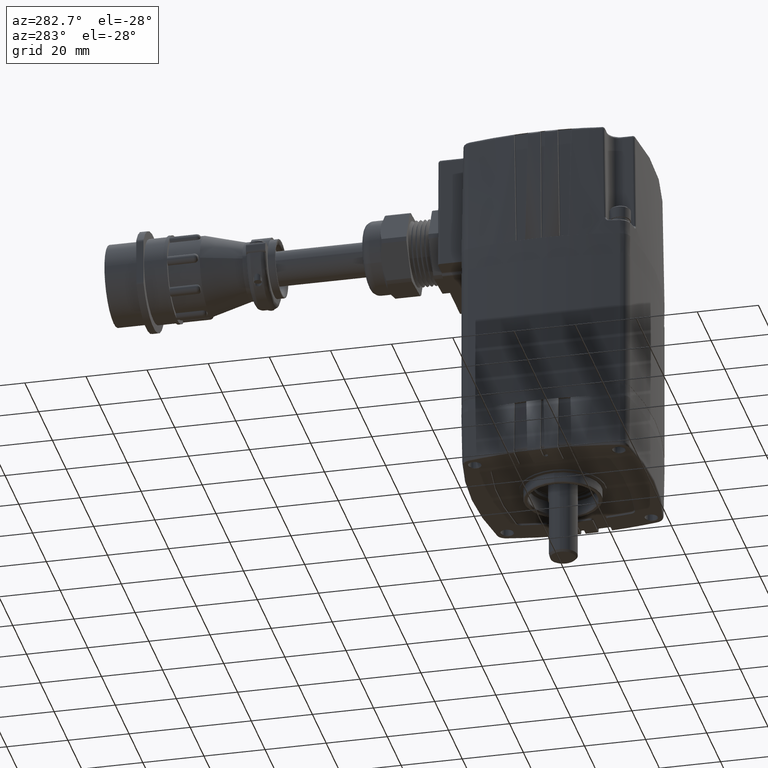
[diagram: clean part render]
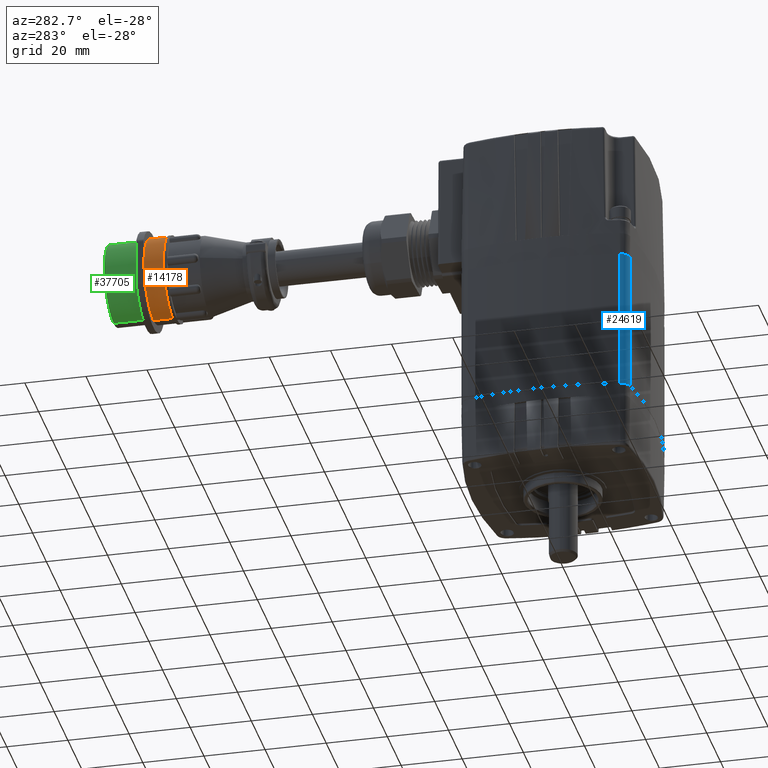
[diagram: same view with three faces highlighted in distinct colors, each labeled with its STEP entity id]
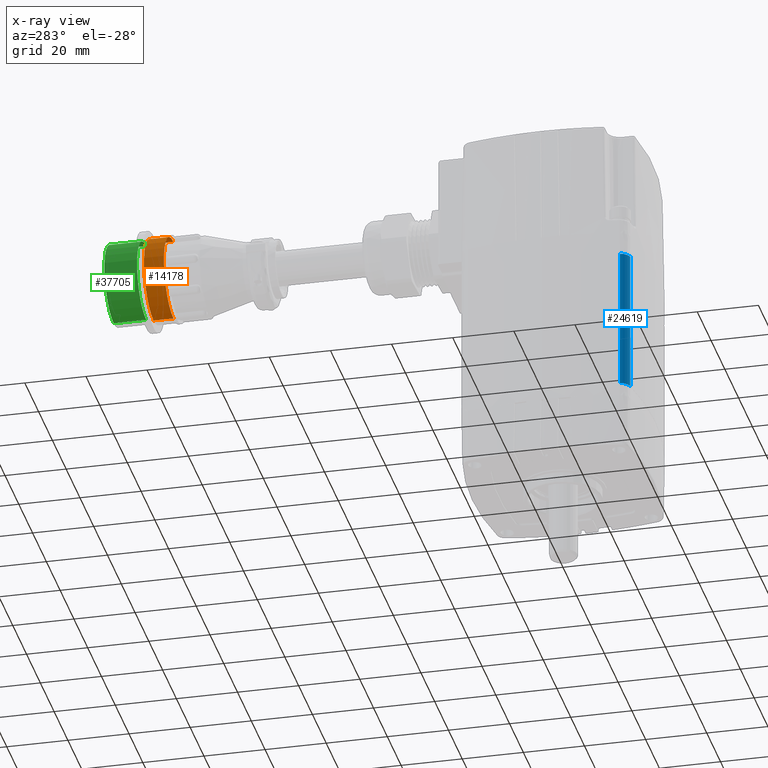
[diagram: x-ray of the same camera — body ghosted, the three highlighted faces saturated]
A machine part, auxiliary view with three faces highlighted in distinct colors.
The next image is the same camera in x-ray (body ghosted, the three faces saturated) — at least one of them is partly hidden behind the body in this view.
Their STEP definitions:

[orange] entity #14178 — the highlighted cylindrical surface (partial cylindrical patch) has radius 13.843 mm, axis along (0, -1, -0).
#408 = CARTESIAN_POINT ( 'NONE',  ( -2.011075613575176400, 4.379474271304236900, -0.09500000000000130600 ) ) ;
#1310 = FACE_OUTER_BOUND ( 'NONE', #19924, .T. ) ;
#1869 = EDGE_CURVE ( 'NONE', #8273, #10011, #8151, .T. ) ;
#3509 = VECTOR ( 'NONE', #22214, 39.37007874015748100 ) ;
#5189 = AXIS2_PLACEMENT_3D ( 'NONE', #14017, #35305, #17071 ) ;
#8151 = CIRCLE ( 'NONE', #9847, 0.5450000000000019300 ) ;
#8273 = VERTEX_POINT ( 'NONE', #16300 ) ;
#9847 = AXIS2_PLACEMENT_3D ( 'NONE', #34295, #16069, #37378 ) ;
#9873 = CARTESIAN_POINT ( 'NONE',  ( -2.011075613575176400, 4.635474271304236300, -0.09500000000000090300 ) ) ;
#10011 = VERTEX_POINT ( 'NONE', #9873 ) ;
#10391 = DIRECTION ( 'NONE',  ( -2.498001805406579500E-016, 1.000000000000000000, 5.551115123125158400E-017 ) ) ;
#10738 = ORIENTED_EDGE ( 'NONE', *, *, #32651, .F. ) ;
#11693 = LINE ( 'NONE', #19186, #3509 ) ;
#13730 = EDGE_CURVE ( 'NONE', #26623, #29540, #27141, .T. ) ;
#14017 = CARTESIAN_POINT ( 'NONE',  ( -2.011075613575176400, 4.379474271304236900, 0.4500000000000012300 ) ) ;
#14178 = ADVANCED_FACE ( 'NONE', ( #1310 ), #23753, .T. ) ;
#16069 = DIRECTION ( 'NONE',  ( 2.498001805406579500E-016, -1.000000000000000000, -5.551115123125158400E-017 ) ) ;
#16300 = CARTESIAN_POINT ( 'NONE',  ( -2.011075613575176400, 4.635474271304242500, 0.9950000000000138700 ) ) ;
#17071 = DIRECTION ( 'NONE',  ( 1.000000000000000000, 0.0000000000000000000, 0.0000000000000000000 ) ) ;
#19186 = CARTESIAN_POINT ( 'NONE',  ( -2.011075613575172400, 5.201974271304216300, 0.9950000000000105400 ) ) ;
#19790 = DIRECTION ( 'NONE',  ( 1.000000000000000000, 0.0000000000000000000, 0.0000000000000000000 ) ) ;
#19924 = EDGE_LOOP ( 'NONE', ( #36591, #31902, #10738, #23108 ) ) ;
#22214 = DIRECTION ( 'NONE',  ( 2.498001805406579500E-016, -1.000000000000000000, -5.551115123125158400E-017 ) ) ;
#22841 = DIRECTION ( 'NONE',  ( 2.498001805406579500E-016, -1.000000000000000000, -5.551115123125158400E-017 ) ) ;
#23108 = ORIENTED_EDGE ( 'NONE', *, *, #13730, .T. ) ;
#23753 = CYLINDRICAL_SURFACE ( 'NONE', #37188, 0.5450000000000019300 ) ;
#24408 = LINE ( 'NONE', #28800, #33486 ) ;
#25198 = EDGE_CURVE ( 'NONE', #8273, #29540, #11693, .T. ) ;
#25919 = CARTESIAN_POINT ( 'NONE',  ( -2.011075613575172400, 5.201974271304217200, 0.4500000000000006800 ) ) ;
#26623 = VERTEX_POINT ( 'NONE', #408 ) ;
#27141 = CIRCLE ( 'NONE', #5189, 0.5450000000000019300 ) ;
#28800 = CARTESIAN_POINT ( 'NONE',  ( -2.011075613575174200, 5.201974271304217200, -0.09500000000000090300 ) ) ;
#29540 = VERTEX_POINT ( 'NONE', #31477 ) ;
#31477 = CARTESIAN_POINT ( 'NONE',  ( -2.011075613575176400, 4.379474271304242300, 0.9950000000000138700 ) ) ;
#31902 = ORIENTED_EDGE ( 'NONE', *, *, #1869, .T. ) ;
#32651 = EDGE_CURVE ( 'NONE', #26623, #10011, #24408, .T. ) ;
#33486 = VECTOR ( 'NONE', #10391, 39.37007874015748100 ) ;
#34295 = CARTESIAN_POINT ( 'NONE',  ( -2.011075613575176400, 4.635474271304237200, 0.4500000000000002300 ) ) ;
#35305 = DIRECTION ( 'NONE',  ( -2.498001805406579500E-016, 1.000000000000000000, 5.551115123125158400E-017 ) ) ;
#36591 = ORIENTED_EDGE ( 'NONE', *, *, #25198, .F. ) ;
#37188 = AXIS2_PLACEMENT_3D ( 'NONE', #25919, #22841, #19790 ) ;
#37378 = DIRECTION ( 'NONE',  ( 1.000000000000000000, 0.0000000000000000000, 0.0000000000000000000 ) ) ;

[blue] entity #24619 — the highlighted cylindrical surface (edge-blend (fillet) strip) has radius 3.556 mm, axis along (0, 0, 1).
#700 = CYLINDRICAL_SURFACE ( 'NONE', #23466, 0.1400000000000001500 ) ;
#1459 = AXIS2_PLACEMENT_3D ( 'NONE', #36140, #17894, #39202 ) ;
#3166 = CIRCLE ( 'NONE', #1459, 0.1400000000000001500 ) ;
#3736 = ORIENTED_EDGE ( 'NONE', *, *, #16067, .T. ) ;
#4449 = EDGE_CURVE ( 'NONE', #14499, #10147, #3166, .T. ) ;
#5639 = ORIENTED_EDGE ( 'NONE', *, *, #26853, .F. ) ;
#8836 = AXIS2_PLACEMENT_3D ( 'NONE', #13014, #34322, #16097 ) ;
#10147 = VERTEX_POINT ( 'NONE', #29486 ) ;
#10407 = CARTESIAN_POINT ( 'NONE',  ( -0.9783630889088966700, -1.087217603070765900, -5.197342997073729300 ) ) ;
#10819 = VERTEX_POINT ( 'NONE', #13004 ) ;
#12848 = EDGE_LOOP ( 'NONE', ( #24615, #3736, #36587, #5639 ) ) ;
#13004 = CARTESIAN_POINT ( 'NONE',  ( -0.9783630889088966700, -1.087217603070766300, -1.840000000000000100 ) ) ;
#13014 = CARTESIAN_POINT ( 'NONE',  ( -0.9501001187157093200, -0.9501001187157102100, -1.840000000000000100 ) ) ;
#14499 = VERTEX_POINT ( 'NONE', #21604 ) ;
#15428 = VECTOR ( 'NONE', #36035, 39.37007874015748100 ) ;
#16067 = EDGE_CURVE ( 'NONE', #10819, #10147, #33660, .T. ) ;
#16097 = DIRECTION ( 'NONE',  ( 1.000000000000000000, 9.756599977372358800E-016, 0.0000000000000000000 ) ) ;
#17894 = DIRECTION ( 'NONE',  ( 0.0000000000000000000, 0.0000000000000000000, 1.000000000000000000 ) ) ;
#19622 = DIRECTION ( 'NONE',  ( 0.0000000000000000000, 0.0000000000000000000, 1.000000000000000000 ) ) ;
#20146 = CIRCLE ( 'NONE', #8836, 0.1400000000000001500 ) ;
#21604 = CARTESIAN_POINT ( 'NONE',  ( -1.087217603070765200, -0.9783630889088978900, 0.0000000000000000000 ) ) ;
#23466 = AXIS2_PLACEMENT_3D ( 'NONE', #38371, #30197, #39239 ) ;
#23523 = LINE ( 'NONE', #29796, #15428 ) ;
#24615 = ORIENTED_EDGE ( 'NONE', *, *, #33071, .F. ) ;
#24619 = ADVANCED_FACE ( 'NONE', ( #25087 ), #700, .T. ) ;
#25087 = FACE_OUTER_BOUND ( 'NONE', #12848, .T. ) ;
#25572 = VECTOR ( 'NONE', #19622, 39.37007874015748100 ) ;
#26853 = EDGE_CURVE ( 'NONE', #36095, #14499, #23523, .T. ) ;
#29486 = CARTESIAN_POINT ( 'NONE',  ( -0.9783630889088966700, -1.087217603070765900, 0.0000000000000000000 ) ) ;
#29796 = CARTESIAN_POINT ( 'NONE',  ( -1.087217603070765200, -0.9783630889088978900, -5.197342997073729300 ) ) ;
#30197 = DIRECTION ( 'NONE',  ( 0.0000000000000000000, 0.0000000000000000000, 1.000000000000000000 ) ) ;
#33071 = EDGE_CURVE ( 'NONE', #10819, #36095, #20146, .T. ) ;
#33660 = LINE ( 'NONE', #10407, #25572 ) ;
#34322 = DIRECTION ( 'NONE',  ( -0.0000000000000000000, -0.0000000000000000000, -1.000000000000000000 ) ) ;
#34480 = CARTESIAN_POINT ( 'NONE',  ( -1.087217603070765200, -0.9783630889088978900, -1.840000000000000100 ) ) ;
#36035 = DIRECTION ( 'NONE',  ( 0.0000000000000000000, 0.0000000000000000000, 1.000000000000000000 ) ) ;
#36095 = VERTEX_POINT ( 'NONE', #34480 ) ;
#36140 = CARTESIAN_POINT ( 'NONE',  ( -0.9501001187157093200, -0.9501001187157102100, 0.0000000000000000000 ) ) ;
#36587 = ORIENTED_EDGE ( 'NONE', *, *, #4449, .F. ) ;
#38371 = CARTESIAN_POINT ( 'NONE',  ( -0.9501001187157093200, -0.9501001187157102100, -5.197342997073729300 ) ) ;
#39202 = DIRECTION ( 'NONE',  ( 1.000000000000000000, 0.0000000000000000000, 0.0000000000000000000 ) ) ;
#39239 = DIRECTION ( 'NONE',  ( 1.000000000000000000, 0.0000000000000000000, 0.0000000000000000000 ) ) ;

[green] entity #37705 — the highlighted cylindrical surface (partial cylindrical patch) has radius 13.335 mm, axis along (0, -1, -0).
#169 = VERTEX_POINT ( 'NONE', #33922 ) ;
#782 = VECTOR ( 'NONE', #27884, 39.37007874015748100 ) ;
#1718 = CYLINDRICAL_SURFACE ( 'NONE', #21762, 0.5250000000000019100 ) ;
#2861 = VECTOR ( 'NONE', #23430, 39.37007874015748100 ) ;
#3503 = DIRECTION ( 'NONE',  ( 1.000000000000000000, 0.0000000000000000000, 0.0000000000000000000 ) ) ;
#3591 = FACE_OUTER_BOUND ( 'NONE', #32926, .T. ) ;
#4911 = CIRCLE ( 'NONE', #27604, 0.5250000000000019100 ) ;
#5252 = AXIS2_PLACEMENT_3D ( 'NONE', #12399, #33713, #15477 ) ;
#6496 = CARTESIAN_POINT ( 'NONE',  ( -2.011075613575174200, 5.201974271304217200, -0.07500000000000056600 ) ) ;
#6541 = ORIENTED_EDGE ( 'NONE', *, *, #15842, .T. ) ;
#10877 = CARTESIAN_POINT ( 'NONE',  ( -2.011075613575176400, 4.729474271304242800, 0.9750000000000096400 ) ) ;
#12399 = CARTESIAN_POINT ( 'NONE',  ( -2.011075613575176400, 4.729474271304236600, 0.4500000000000002300 ) ) ;
#12794 = DIRECTION ( 'NONE',  ( 2.498001805406579500E-016, -1.000000000000000000, -5.551115123125158400E-017 ) ) ;
#13018 = CARTESIAN_POINT ( 'NONE',  ( -2.011075613575172400, 5.149474271304217900, 0.4500000000000007900 ) ) ;
#13192 = CIRCLE ( 'NONE', #5252, 0.5250000000000019100 ) ;
#15128 = VERTEX_POINT ( 'NONE', #10877 ) ;
#15477 = DIRECTION ( 'NONE',  ( 1.000000000000000000, 0.0000000000000000000, 0.0000000000000000000 ) ) ;
#15842 = EDGE_CURVE ( 'NONE', #36961, #15128, #13192, .T. ) ;
#16102 = DIRECTION ( 'NONE',  ( 1.000000000000000000, 0.0000000000000000000, 0.0000000000000000000 ) ) ;
#18592 = ORIENTED_EDGE ( 'NONE', *, *, #18639, .T. ) ;
#18639 = EDGE_CURVE ( 'NONE', #169, #33076, #4911, .T. ) ;
#19200 = LINE ( 'NONE', #20370, #2861 ) ;
#20370 = CARTESIAN_POINT ( 'NONE',  ( -2.011075613575172400, 5.201974271304217200, 0.9750000000000101900 ) ) ;
#20379 = ORIENTED_EDGE ( 'NONE', *, *, #28016, .F. ) ;
#21762 = AXIS2_PLACEMENT_3D ( 'NONE', #25040, #12794, #3503 ) ;
#23430 = DIRECTION ( 'NONE',  ( 2.498001805406579500E-016, -1.000000000000000000, -5.551115123125158400E-017 ) ) ;
#25040 = CARTESIAN_POINT ( 'NONE',  ( -2.011075613575172400, 5.201974271304217200, 0.4500000000000006800 ) ) ;
#27604 = AXIS2_PLACEMENT_3D ( 'NONE', #13018, #34328, #16102 ) ;
#27749 = CARTESIAN_POINT ( 'NONE',  ( -2.011075613575176400, 4.729474271304236600, -0.07500000000000056600 ) ) ;
#27884 = DIRECTION ( 'NONE',  ( -2.498001805406579500E-016, 1.000000000000000000, 5.551115123125158400E-017 ) ) ;
#28016 = EDGE_CURVE ( 'NONE', #169, #15128, #19200, .T. ) ;
#28532 = LINE ( 'NONE', #6496, #782 ) ;
#31169 = CARTESIAN_POINT ( 'NONE',  ( -2.011075613575174200, 5.149474271304217900, -0.07500000000000056600 ) ) ;
#32926 = EDGE_LOOP ( 'NONE', ( #6541, #20379, #18592, #35513 ) ) ;
#33076 = VERTEX_POINT ( 'NONE', #31169 ) ;
#33713 = DIRECTION ( 'NONE',  ( -2.498001805406579500E-016, 1.000000000000000000, 5.551115123125158400E-017 ) ) ;
#33922 = CARTESIAN_POINT ( 'NONE',  ( -2.011075613575172400, 5.149474271304217900, 0.9750000000000135200 ) ) ;
#34328 = DIRECTION ( 'NONE',  ( 2.498001805406579500E-016, -1.000000000000000000, -5.551115123125158400E-017 ) ) ;
#35513 = ORIENTED_EDGE ( 'NONE', *, *, #37244, .F. ) ;
#36961 = VERTEX_POINT ( 'NONE', #27749 ) ;
#37244 = EDGE_CURVE ( 'NONE', #36961, #33076, #28532, .T. ) ;
#37705 = ADVANCED_FACE ( 'NONE', ( #3591 ), #1718, .T. ) ;